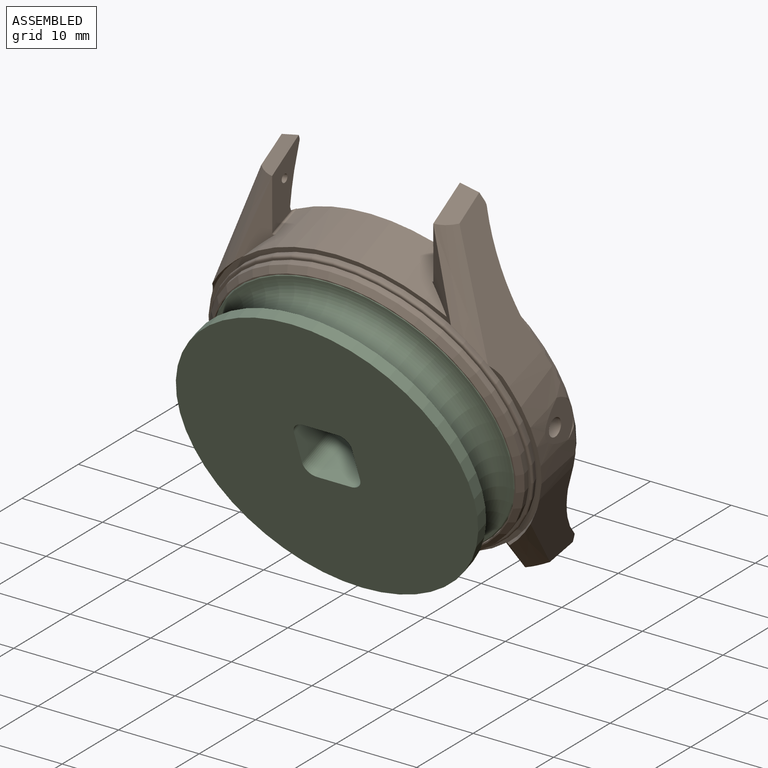
[diagram: assembled view]
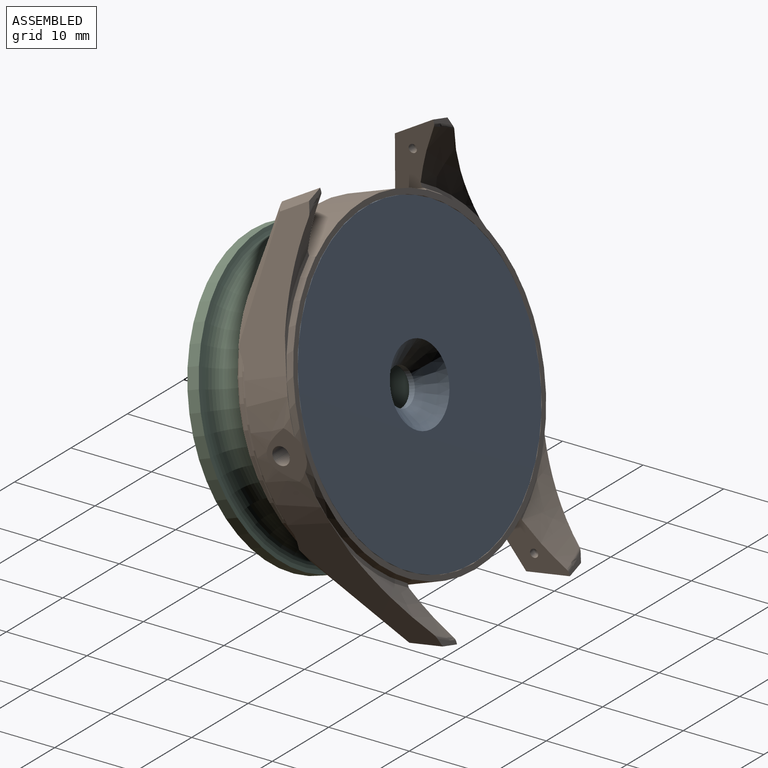
[diagram: assembled view, second angle]
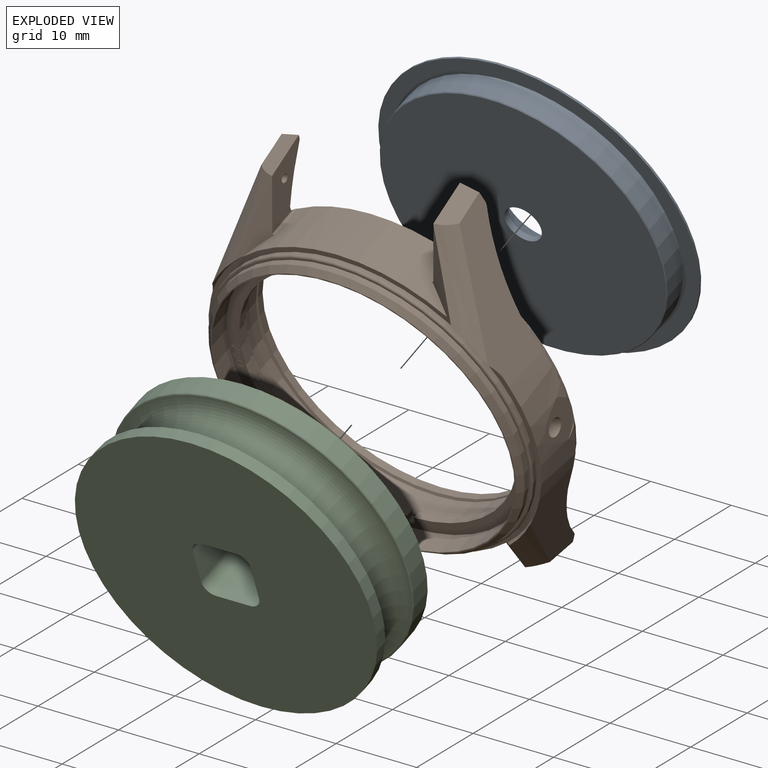
[diagram: exploded view]
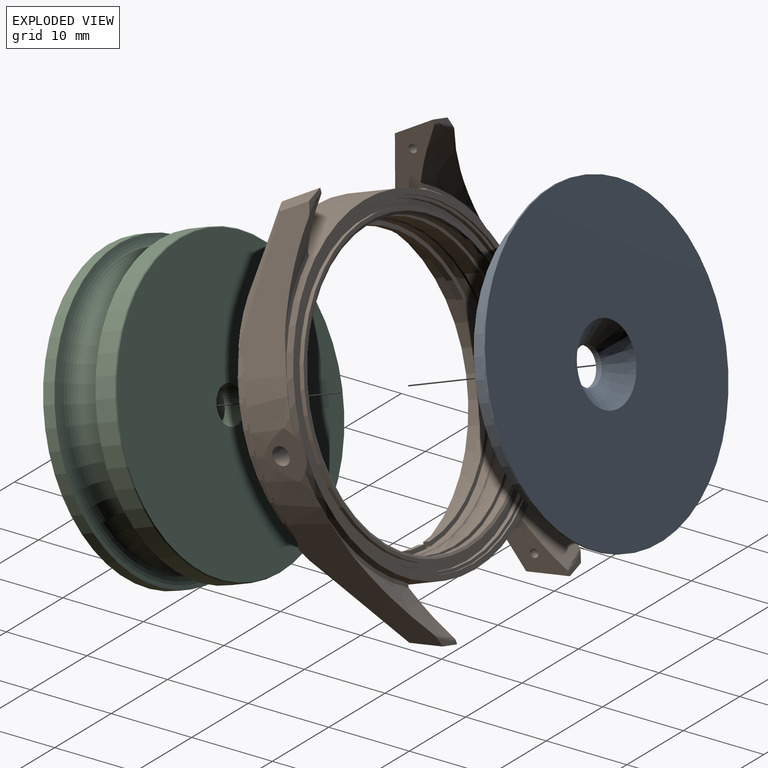
[diagram: exploded view, second angle]
ASSEMBLY  parts=3 mates=2
PART A: 8 faces, bbox 3.3x38.8x38.8 mm
  f0: plane 38.82x38.82mm, normal (1,0,0), area 1112.7mm2, adj f1,f6
  f1: cylinder r=19.41mm len=38.82mm, axis (-1,0,0), area 30.5mm2, adj f0,f2
  f2: plane 38.82x38.82mm, normal (-1,0,0), area 235.7mm2, adj f1,f3
  f3: cylinder r=17.37mm len=34.74mm, axis (-1,0,0), area 316.5mm2, adj f2,f7
  f4: plane 34.54x34.54mm, normal (-1,0,0), area 921.1mm2, adj f5,f7
  f5: cylinder r=2.25mm len=4.5mm, axis (1,0,0), area 10.6mm2, adj f4,f6
  f6: cone r=2.25mm half-angle=45deg, axis (1,0,0), area 77.8mm2, adj f0,f5
  f7: cone r=17.27mm half-angle=45deg, axis (1,0,0), area 15.4mm2, adj f3,f4
PART B: 146 faces, bbox 43.5x13.1x50.1 mm
  f0: plane 36.6x36.6mm, normal (0,1,0), area 168mm2, adj f6,f72,f73,f77,f78,f79,f81,f82
  f1: cylinder r=17.4mm len=34.8mm, axis (0,1,0), area 214mm2, adj f2,f70,f85
  f2: cone r=17.4mm half-angle=45deg, axis (0,-1,0), area 22.5mm2, adj f1,f3,f85
  f3: cylinder r=17.25mm len=34.5mm, axis (0,1,0), area 115.6mm2, adj f2,f5,f71,f80,f84,f85,f86
  f4: cylinder r=1.08mm len=2.82mm, axis (-1,0,0), area 19.2mm2, adj f74,f85
  f5: plane 34.49x16.85mm, normal (0,-1,0), area 26.3mm2, adj f3,f6,f78,f79,f81,f82
  f6: cylinder r=16.75mm len=33.49mm, axis (0,1,0), area 46.6mm2, adj f0,f5,f79,f81
  f7: cone r=20.87mm half-angle=3.8deg, axis (0,-1,0), area 77.2mm2, adj f9,f10,f12,f14,f34,f74,f75,f76
  f8: cone r=20.45mm half-angle=24.8deg, axis (0,1,0), area 29.2mm2, adj f9,f10,f16,f21,f45,f74,f75,f76
  f9: plane 16.44x10.4mm, normal (0,-1,0), area 5.3mm2, adj f7,f8,f14,f21,f51,f75
  f10: plane 16.44x10.4mm, normal (0,-1,0), area 5.3mm2, adj f7,f8,f12,f16,f49,f76
  f11: plane 16.53x10.71mm, normal (-0.92,0.07,0.39), area 87.8mm2, adj f17,f24,f30,f34,f43,f47,f48,f54
  f12: plane 16.53x10.71mm, normal (0.92,0.07,-0.39), area 87.8mm2, adj f7,f10,f23,f31,f34,f42,f49,f53
  f13: plane 16.53x10.71mm, normal (-0.92,0.07,-0.39), area 87.8mm2, adj f17,f22,f32,f34,f41,f47,f50,f52
  f14: plane 16.53x10.71mm, normal (0.92,0.07,0.39), area 87.8mm2, adj f7,f9,f25,f33,f34,f44,f51,f55
  f15: plane 7.95x7.44mm, normal (1,0,0), area 26mm2, adj f24,f26,f46,f47,f48,f54,f59,f90
  f16: plane 7.95x7.44mm, normal (-1,0,0), area 26mm2, adj f8,f10,f23,f27,f49,f53,f57,f87
  f17: cone r=19.87mm half-angle=3.8deg, axis (0,-1,0), area 95.5mm2, adj f11,f13,f34,f47
  f18: plane 7.95x7.44mm, normal (1,0,0), area 26mm2, adj f22,f29,f46,f47,f50,f52,f56,f88
  f19: cylinder r=20.1mm len=25.29mm, axis (0,1,0), area 140.1mm2, adj f27,f29,f34,f45,f87,f88
  f20: cylinder r=20.1mm len=25.29mm, axis (0,1,0), area 140.1mm2, adj f26,f28,f34,f45,f89,f90
  f21: plane 7.95x7.44mm, normal (-1,0,0), area 26mm2, adj f8,f9,f25,f28,f51,f55,f58,f89
  f22: plane 5.69x2.59mm, normal (-0.25,0.18,-0.95), area 11.7mm2, adj f13,f18,f41,f52
  f23: plane 5.69x2.59mm, normal (0.25,0.18,-0.95), area 11.7mm2, adj f12,f16,f42,f53
  f24: plane 5.69x2.59mm, normal (-0.25,0.18,0.95), area 11.7mm2, adj f11,f15,f43,f54
  f25: plane 5.69x2.59mm, normal (0.25,0.18,0.95), area 11.7mm2, adj f14,f21,f44,f55
  f26: plane 8.72x5.19mm, normal (0.47,0.83,0.3), area 13.5mm2, adj f15,f20,f30,f34,f43,f90
  f27: plane 8.72x5.19mm, normal (-0.47,0.83,-0.3), area 13.5mm2, adj f16,f19,f31,f34,f42,f87
  f28: plane 8.72x5.19mm, normal (-0.47,0.83,0.3), area 13.5mm2, adj f20,f21,f33,f34,f44,f89
  f29: plane 8.72x5.19mm, normal (0.47,0.83,-0.3), area 13.5mm2, adj f18,f19,f32,f34,f41,f88
  f30: cone r=20.15mm half-angle=16deg, axis (0,1,0), area 4.9mm2, adj f11,f26,f34,f43
  f31: cone r=20.15mm half-angle=16deg, axis (0,1,0), area 4.9mm2, adj f12,f27,f34,f42
  f32: cone r=20.15mm half-angle=16deg, axis (0,1,0), area 4.9mm2, adj f13,f29,f34,f41
  f33: cone r=20.15mm half-angle=16deg, axis (0,1,0), area 4.9mm2, adj f14,f28,f34,f44
  f34: plane 40.21x40.2mm, normal (0,1,0), area 82.9mm2, adj f7,f11,f12,f13,f14,f17,f19,f20
  f35: plane 36.9x36.9mm, normal (0,1,0), area 17.3mm2, adj f36,f73
  f36: cone r=18.45mm half-angle=45deg, axis (0,-1,0), area 108.4mm2, adj f35,f37
  f37: cylinder r=19.1mm len=38.2mm, axis (0,-1,0), area 90mm2, adj f36,f38
  f38: plane 38.6x38.6mm, normal (0,1,0), area 24.1mm2, adj f37,f39
  f39: torus R=19.3mm, axis (0,-1,0), area 53.4mm2, adj f38,f40
  f40: cone r=19.55mm half-angle=10deg, axis (0,1,0), area 69.2mm2, adj f34,f39
  f41: bspline ~12.87x8.8mm, area 35.7mm2, adj f13,f22,f29,f32
  f42: bspline ~12.87x8.8mm, area 35.7mm2, adj f12,f23,f27,f31
  f43: bspline ~12.87x8.8mm, area 35.7mm2, adj f11,f24,f26,f30
  f44: bspline ~12.87x8.8mm, area 35.7mm2, adj f14,f25,f28,f33
  f45: plane 40.3x40.2mm, normal (0,-1,0), area 85mm2, adj f8,f19,f20,f46,f60,f87,f88,f89
  f46: cone r=20.45mm half-angle=24.8deg, axis (0,1,0), area 30.8mm2, adj f15,f18,f45,f47,f88,f90
  f47: plane 36.7x10.49mm, normal (0,-1,0), area 10.8mm2, adj f11,f13,f15,f17,f18,f46,f48,f50
  f48: torus R=5.72mm, axis (0,1,0), area 35.6mm2, adj f11,f15,f47,f59
  f49: torus R=5.72mm, axis (0,1,0), area 35.6mm2, adj f10,f12,f16,f57
  f50: torus R=5.72mm, axis (0,1,0), area 35.6mm2, adj f13,f18,f47,f56
  f51: torus R=5.72mm, axis (0,1,0), area 35.6mm2, adj f9,f14,f21,f58
  f52: plane 2.7x1.64mm, normal (0,-1,0), area 1.4mm2, adj f13,f18,f22,f56
  f53: plane 2.7x1.64mm, normal (0,-1,0), area 1.4mm2, adj f12,f16,f23,f57
  f54: plane 2.7x1.64mm, normal (0,-1,0), area 1.4mm2, adj f11,f15,f24,f59
  f55: plane 2.7x1.64mm, normal (0,-1,0), area 1.4mm2, adj f14,f21,f25,f58
  f56: torus R=26.45mm, axis (0,-1,0), area 1.2mm2, adj f13,f18,f50,f52
  f57: torus R=26.45mm, axis (0,-1,0), area 1.2mm2, adj f12,f16,f49,f53
  f58: torus R=26.45mm, axis (0,-1,0), area 1.2mm2, adj f14,f21,f51,f55
  f59: torus R=26.45mm, axis (0,-1,0), area 1.2mm2, adj f11,f15,f48,f54
  f60: cylinder r=19.45mm len=38.9mm, axis (0,1,0), area 30.6mm2, adj f45,f61
  f61: plane 38.9x38.9mm, normal (0,-1,0), area 42.4mm2, adj f60,f62
  f62: cylinder r=19.1mm len=38.2mm, axis (0,1,0), area 66mm2, adj f61,f63
  f63: plane 38.2x38.2mm, normal (0,-1,0), area 109.4mm2, adj f62,f64
  f64: cone r=18.17mm half-angle=8deg, axis (0,-1,0), area 69.3mm2, adj f63,f65
  f65: plane 36.5x36.5mm, normal (0,-1,0), area 51mm2, adj f64,f66
  f66: cone r=17.8mm half-angle=60deg, axis (0,-1,0), area 38.4mm2, adj f65,f67
  f67: cylinder r=17.5mm len=35mm, axis (0,1,0), area 93.9mm2, adj f66,f68
  f68: cone r=17.5mm half-angle=60deg, axis (0,1,0), area 38.4mm2, adj f67,f69
  f69: cylinder r=17.8mm len=35.6mm, axis (0,1,0), area 44.7mm2, adj f68,f70
  f70: plane 35.6x35.6mm, normal (0,-1,0), area 44.1mm2, adj f1,f69,f85
  f71: plane 34.49x16.85mm, normal (0,-1,0), area 26.3mm2, adj f3,f72,f77,f78,f82,f83
  f72: cylinder r=16.75mm len=33.49mm, axis (0,1,0), area 46.6mm2, adj f0,f71,f77,f83
  f73: cylinder r=18.3mm len=36.6mm, axis (0,1,0), area 322mm2, adj f0,f35
  f74: plane 5.94x5.04mm, normal (1,0,0), area 16.3mm2, adj f4,f7,f8,f75,f76
  f75: cylinder r=3.23mm len=2.03mm, axis (-1,0,0), area 0.3mm2, adj f7,f8,f9,f74
  f76: cylinder r=3.23mm len=2.03mm, axis (-1,0,0), area 0.3mm2, adj f7,f8,f10,f74
  f77: plane 0.9x0.45mm, normal (1,0,0), area 0.4mm2, adj f0,f71,f72,f78
  f78: cylinder r=0.4mm len=0.9mm, axis (0,1,0), area 1.1mm2, adj f0,f5,f71,f77,f79,f80
  f79: plane 0.9x0.45mm, normal (-1,0,0), area 0.4mm2, adj f0,f5,f6,f78
  f80: plane 0.8x0.35mm, normal (0,1,0), area 0.2mm2, adj f3,f78
  f81: plane 0.9x0.45mm, normal (-1,0,0), area 0.4mm2, adj f0,f5,f6,f82
  f82: cylinder r=0.4mm len=0.9mm, axis (0,1,0), area 1.1mm2, adj f0,f5,f71,f81,f83,f84
  f83: plane 0.9x0.45mm, normal (1,0,0), area 0.4mm2, adj f0,f71,f72,f82
  f84: plane 0.8x0.35mm, normal (0,1,0), area 0.2mm2, adj f3,f82
  f85: cylinder r=5mm len=3.66mm, axis (0,-1,0), area 5.2mm2, adj f1,f2,f3,f4,f70,f86
  f86: plane 3.66x0.35mm, normal (0,-1,0), area 0.6mm2, adj f3,f85
  f87: cylinder r=0.2mm len=4.22mm, axis (0,1,0), area 1.7mm2, adj f8,f16,f19,f27,f45
  f88: cylinder r=0.2mm len=4.22mm, axis (0,1,0), area 1.7mm2, adj f18,f19,f29,f45,f46
  f89: cylinder r=0.2mm len=4.22mm, axis (0,1,0), area 1.7mm2, adj f8,f20,f21,f28,f45
  f90: cylinder r=0.2mm len=4.22mm, axis (0,1,0), area 1.7mm2, adj f15,f20,f26,f45,f46
  f91: cylinder r=0.5mm len=1.52mm, axis (-0.98,0.21,0), area 3.9mm2, adj f15,f92
  f92: cone r=0.5mm half-angle=60deg, axis (0.98,-0.21,0), area 0.9mm2, adj f91
  f93: cylinder r=0.5mm len=1.52mm, axis (0.98,0.21,0), area 3.9mm2, adj f21,f94
  f94: cone r=0.5mm half-angle=60deg, axis (-0.98,-0.21,0), area 0.9mm2, adj f93
  f95: cylinder r=0.5mm len=1.52mm, axis (-0.98,0.21,0), area 3.9mm2, adj f18,f96
  f96: cone r=0.5mm half-angle=60deg, axis (0.98,-0.21,0), area 0.9mm2, adj f95
  f97: cylinder r=0.5mm len=1.52mm, axis (0.98,0.21,0), area 3.9mm2, adj f16,f98
  f98: cone r=0.5mm half-angle=60deg, axis (-0.98,-0.21,0), area 0.9mm2, adj f97
  f99: plane 0.14x0.02mm, normal (-1,0,-0.07), area 0mm2, adj f0,f100,f106,f107
  f100: plane 0.97x0.45mm, normal (0.42,0,-0.91), area 0mm2, adj f0,f99,f101,f107
  f101: plane 0.14x0.02mm, normal (1,0,0.07), area 0mm2, adj f0,f100,f102,f107
  f102: plane 1.02x0.34mm, normal (0.32,0,0.95), area 0mm2, adj f0,f101,f103,f107
  f103: plane 0.15x0.02mm, normal (-1,0,-0.07), area 0mm2, adj f0,f102,f104,f107
  f104: plane 0.31x0.1mm, normal (-0.3,0,-0.95), area 0mm2, adj f0,f103,f105,f107
  f105: plane 0.41x0.03mm, normal (-1,0,-0.07), area 0mm2, adj f0,f104,f106,f107
  f106: plane 0.29x0.13mm, normal (-0.4,0,0.92), area 0mm2, adj f0,f99,f105,f107
  f107: plane 1.03x0.93mm, normal (0,1,0), area 0.3mm2, adj f99,f100,f101,f102,f103,f104,f105,f106
  f108: plane 0.28x0.13mm, normal (-0.41,0,0.91), area 0mm2, adj f107,f109,f112,f113
  f109: cylinder r=1.25mm len=0.19mm, axis (0,-1,0), area 0mm2, adj f107,f108,f110,f113
  f110: cylinder r=2.55mm len=0.21mm, axis (0,-1,0), area 0mm2, adj f107,f109,f111,f113
  f111: plane 0.28x0.09mm, normal (-0.29,0,-0.96), area 0mm2, adj f107,f110,f112,f113
  f112: plane 0.34x0.02mm, normal (1,0,0.07), area 0mm2, adj f107,f108,f111,f113
  f113: plane 0.49x0.34mm, normal (0,1,0), area 0.1mm2, adj f108,f109,f110,f111,f112
  f114: plane 0.36x0.02mm, normal (-1,0,0.06), area 0mm2, adj f0,f115,f120,f121
  f115: plane 0.99x0.06mm, normal (-0.06,0,-1), area 0mm2, adj f0,f114,f116,f121
  f116: plane 0.34x0.02mm, normal (1,0,-0.06), area 0mm2, adj f0,f115,f117,f121
  f117: cylinder r=0.81mm len=0.18mm, axis (0,-1,0), area 0mm2, adj f0,f116,f118,f121
  f118: cylinder r=0.34mm len=0.15mm, axis (0,-1,0), area 0mm2, adj f0,f117,f119,f121
  f119: extruded ~0.4x0.18mm, area 0mm2, adj f0,f118,f120,f121
  f120: extruded ~0.53x0.43mm, area 0mm2, adj f0,f114,f119,f121
  f121: plane 1.02x0.85mm, normal (0,1,0), area 0.4mm2, adj f114,f115,f116,f117,f118,f119,f120,f122
  f122: plane 0.76x0.05mm, normal (0.06,0,1), area 0mm2, adj f121,f123,f128,f145
  f123: plane 0.21x0.02mm, normal (-1,0,0.06), area 0mm2, adj f121,f122,f124,f145
  f124: extruded ~0.17x0.02mm, area 0mm2, adj f121,f123,f125,f145
  f125: extruded ~0.34x0.2mm, area 0mm2, adj f121,f124,f126,f145
  f126: extruded ~0.32x0.08mm, area 0mm2, adj f121,f125,f127,f145
  f127: extruded ~0.24x0.09mm, area 0mm2, adj f121,f126,f128,f145
  f128: plane 0.21x0.02mm, normal (1,0,-0.06), area 0mm2, adj f121,f122,f127,f145
  f129: plane 0.29x0.02mm, normal (-1,0,0), area 0mm2, adj f0,f130,f143,f144
  f130: plane 0.12x0.02mm, normal (0,0,-1), area 0mm2, adj f0,f129,f131,f144
  f131: plane 0.42x0.02mm, normal (1,0,0), area 0mm2, adj f0,f130,f132,f144
  f132: plane 0.37x0.02mm, normal (0,0,1), area 0mm2, adj f0,f131,f133,f144
  f133: extruded ~0.41x0.15mm, area 0mm2, adj f0,f132,f134,f144
  f134: extruded ~0.51x0.51mm, area 0mm2, adj f0,f133,f135,f144
  f135: extruded ~0.52x0.5mm, area 0mm2, adj f0,f134,f136,f144
  f136: extruded ~0.41x0.29mm, area 0mm2, adj f0,f135,f137,f144
  f137: plane 0.12x0.03mm, normal (-0.96,0,0.26), area 0mm2, adj f0,f136,f138,f144
  f138: extruded ~0.29x0.21mm, area 0mm2, adj f0,f137,f139,f144
  f139: extruded ~0.32x0.2mm, area 0mm2, adj f0,f138,f140,f144
  f140: cylinder r=0.52mm len=0.2mm, axis (0,1,0), area 0mm2, adj f0,f139,f141,f144
  f141: extruded ~0.4x0.36mm, area 0mm2, adj f0,f140,f142,f144
  f142: cylinder r=0.47mm len=0.29mm, axis (0,1,0), area 0mm2, adj f0,f141,f143,f144
  f143: plane 0.18x0.02mm, normal (0,0,-1), area 0mm2, adj f0,f129,f142,f144
  f144: plane 1.03x0.92mm, normal (0,1,0), area 0.4mm2, adj f129,f130,f131,f132,f133,f134,f135,f136
  f145: plane 0.77x0.58mm, normal (0,1,0), area 0.4mm2, adj f122,f123,f124,f125,f126,f127,f128
PART C: 17 faces, bbox 9.6x43.6x43.6 mm
  f0: plane 36.5x36.5mm, normal (1,0,0), area 996.4mm2, adj f1,f5,f6,f7,f8,f9,f10,f11
  f1: cylinder r=18.25mm len=36.5mm, axis (-1,0,0), area 172mm2, adj f0,f2
  f2: torus R=18.25mm, axis (-1,0,0), area 856.8mm2, adj f1,f16
  f3: cylinder r=18.25mm len=36.5mm, axis (-1,0,0), area 298.3mm2, adj f15,f16
  f4: plane 36.3x36.3mm, normal (-1,0,0), area 1019mm2, adj f14,f15
  f5: plane 7x4.2mm, normal (0,-1,0), area 29.4mm2, adj f0,f6,f12,f13
  f6: cylinder r=1.5mm len=7mm, axis (1,0,0), area 16.5mm2, adj f0,f5,f7,f13
  f7: plane 7x4.2mm, normal (0,0,-1), area 29.4mm2, adj f0,f6,f8,f13
  f8: cylinder r=1.5mm len=7mm, axis (1,0,0), area 16.5mm2, adj f0,f7,f9,f13
  f9: plane 7x4.2mm, normal (0,1,0), area 29.4mm2, adj f0,f8,f10,f13
  f10: cylinder r=1.5mm len=7mm, axis (1,0,0), area 16.5mm2, adj f0,f9,f11,f13
  f11: plane 7x4.2mm, normal (0,0,1), area 29.4mm2, adj f0,f10,f12,f13
  f12: cylinder r=1.5mm len=7mm, axis (1,0,0), area 16.5mm2, adj f0,f5,f11,f13
  f13: plane 7.2x7.2mm, normal (1,0,0), area 34mm2, adj f5,f6,f7,f8,f9,f10,f11,f12
  f14: cylinder r=2.25mm len=4.5mm, axis (1,0,0), area 36.9mm2, adj f4,f13
  f15: cone r=18.15mm half-angle=45deg, axis (1,0,0), area 16.2mm2, adj f3,f4
  f16: cone r=18.25mm half-angle=44deg, axis (-1,0,0), area 15.9mm2, adj f2,f3
PLACE A rot(axis=(-0.5,-0.71,0.5),109.2deg) t=(0,-5.76,16.68)mm
PLACE B rot(axis=(-1,0,0),160deg) t=(0,-2.71,17.79)mm
PLACE C rot(axis=(0.63,-0.44,-0.63),132.1deg) t=(0,-8.31,15.75)mm fixed
MATE planar B.f1 <-> A.f5  axis (0,0.94,0.34) through (0,-2.71,17.79)mm
MATE fastened C.f1 <-> B.f1  axis (0,0.94,0.34) through (0,-9.61,15.27)mm
